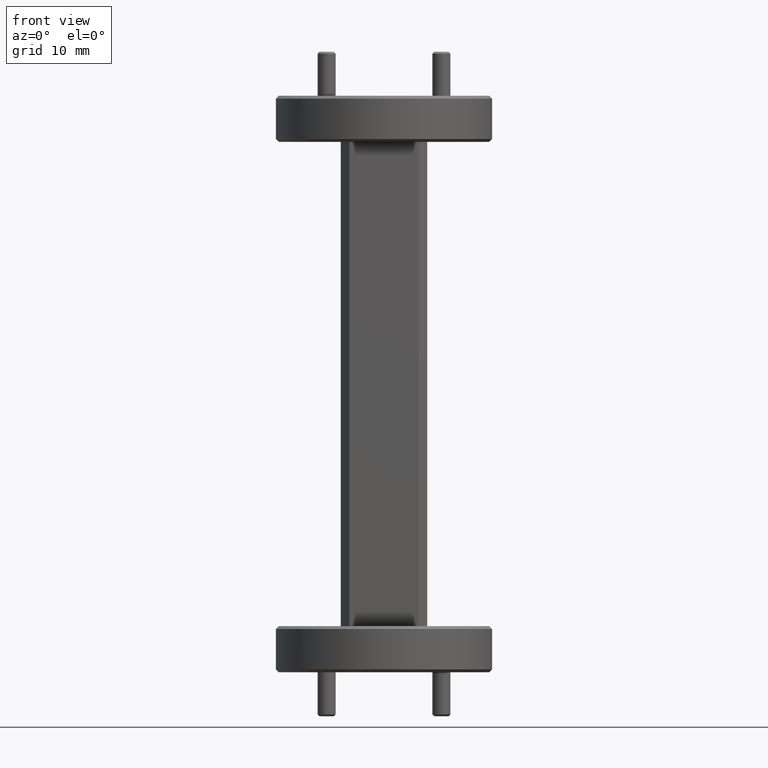
[diagram: clean part render]
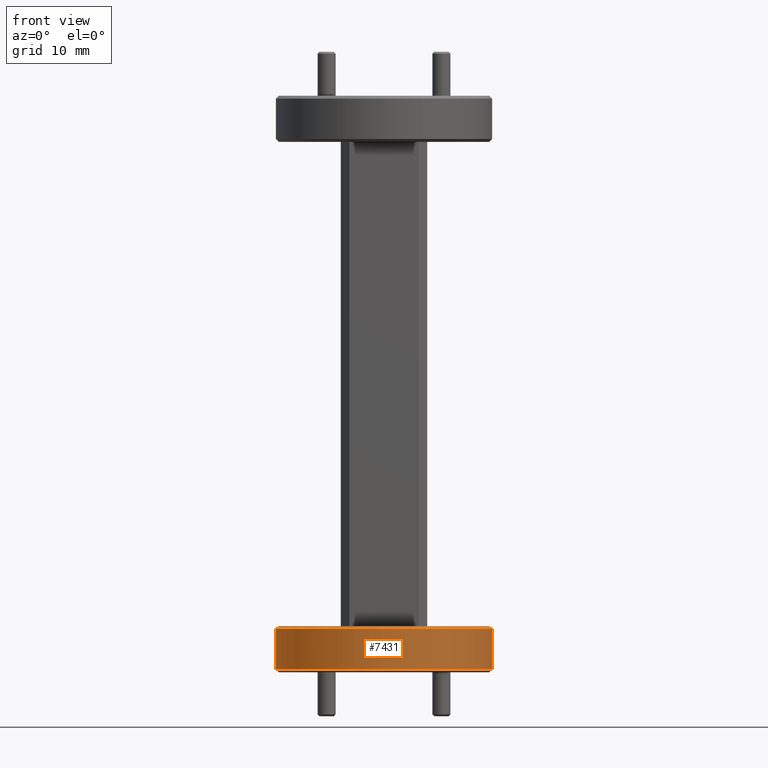
[diagram: same view with one face highlighted and labeled with its STEP entity id]
A machine part, front view. The second image highlights one B-rep face of the part: STEP entity #7431.
In plain terms, the highlighted cylindrical surface (partial cylindrical patch) has radius 9.525 mm, axis along (0, 0, -1).
Its self-contained STEP definition (entity closure, byte-faithful):
#85 = CARTESIAN_POINT ( 'NONE',  ( -0.3750000000000000555, 0.000000000000000000, -0.9899999999999995470 ) ) ;
#353 = CARTESIAN_POINT ( 'NONE',  ( 0.000000000000000000, 0.000000000000000000, -0.8499999999999996447 ) ) ;
#510 = CARTESIAN_POINT ( 'NONE',  ( -0.3750000000000000555, 0.000000000000000000, -0.8499999999999996447 ) ) ;
#654 = CARTESIAN_POINT ( 'NONE',  ( 0.000000000000000000, 0.000000000000000000, -0.8400000000000000799 ) ) ;
#1168 = VECTOR ( 'NONE', #5820, 39.37007874015748143 ) ;
#1444 = VERTEX_POINT ( 'NONE', #85 ) ;
#1505 = CARTESIAN_POINT ( 'NONE',  ( 0.3750000000000000555, 4.592425496802575451E-17, -0.8499999999999996447 ) ) ;
#1686 = AXIS2_PLACEMENT_3D ( 'NONE', #654, #2382, #6642 ) ;
#1962 = EDGE_CURVE ( 'NONE', #1444, #4552, #3379, .T. ) ;
#2025 = DIRECTION ( 'NONE',  ( -1.000000000000000000, 0.000000000000000000, 0.000000000000000000 ) ) ;
#2209 = CARTESIAN_POINT ( 'NONE',  ( 0.3750000000000000555, 4.592425496802575451E-17, -0.8400000000000000799 ) ) ;
#2226 = EDGE_CURVE ( 'NONE', #6659, #4552, #2837, .T. ) ;
#2382 = DIRECTION ( 'NONE',  ( 0.000000000000000000, 0.000000000000000000, -1.000000000000000000 ) ) ;
#2837 = LINE ( 'NONE', #2209, #1168 ) ;
#2957 = VERTEX_POINT ( 'NONE', #510 ) ;
#3181 = DIRECTION ( 'NONE',  ( -0.000000000000000000, -0.000000000000000000, 1.000000000000000000 ) ) ;
#3379 = CIRCLE ( 'NONE', #7208, 0.3750000000000000555 ) ;
#3877 = CARTESIAN_POINT ( 'NONE',  ( 0.000000000000000000, 0.000000000000000000, -0.9899999999999995470 ) ) ;
#4102 = EDGE_LOOP ( 'NONE', ( #5846, #4397, #5052, #4591 ) ) ;
#4111 = VECTOR ( 'NONE', #6200, 39.37007874015748143 ) ;
#4286 = CYLINDRICAL_SURFACE ( 'NONE', #1686, 0.3750000000000000555 ) ;
#4317 = EDGE_CURVE ( 'NONE', #6659, #2957, #7108, .T. ) ;
#4397 = ORIENTED_EDGE ( 'NONE', *, *, #4317, .T. ) ;
#4552 = VERTEX_POINT ( 'NONE', #6134 ) ;
#4591 = ORIENTED_EDGE ( 'NONE', *, *, #1962, .T. ) ;
#5052 = ORIENTED_EDGE ( 'NONE', *, *, #5163, .T. ) ;
#5163 = EDGE_CURVE ( 'NONE', #2957, #1444, #6247, .T. ) ;
#5445 = FACE_OUTER_BOUND ( 'NONE', #4102, .T. ) ;
#5551 = CARTESIAN_POINT ( 'NONE',  ( -0.3750000000000000555, 0.000000000000000000, -0.8400000000000000799 ) ) ;
#5820 = DIRECTION ( 'NONE',  ( 0.000000000000000000, 0.000000000000000000, -1.000000000000000000 ) ) ;
#5846 = ORIENTED_EDGE ( 'NONE', *, *, #2226, .F. ) ;
#5881 = AXIS2_PLACEMENT_3D ( 'NONE', #353, #6841, #2025 ) ;
#6134 = CARTESIAN_POINT ( 'NONE',  ( 0.3750000000000000555, 4.592425496802575451E-17, -0.9899999999999995470 ) ) ;
#6200 = DIRECTION ( 'NONE',  ( 0.000000000000000000, 0.000000000000000000, -1.000000000000000000 ) ) ;
#6247 = LINE ( 'NONE', #5551, #4111 ) ;
#6642 = DIRECTION ( 'NONE',  ( -1.000000000000000000, 0.000000000000000000, 0.000000000000000000 ) ) ;
#6659 = VERTEX_POINT ( 'NONE', #1505 ) ;
#6781 = DIRECTION ( 'NONE',  ( 1.000000000000000000, 0.000000000000000000, 0.000000000000000000 ) ) ;
#6841 = DIRECTION ( 'NONE',  ( 0.000000000000000000, 0.000000000000000000, -1.000000000000000000 ) ) ;
#7108 = CIRCLE ( 'NONE', #5881, 0.3750000000000000555 ) ;
#7208 = AXIS2_PLACEMENT_3D ( 'NONE', #3877, #3181, #6781 ) ;
#7431 = ADVANCED_FACE ( 'NONE', ( #5445 ), #4286, .T. ) ;